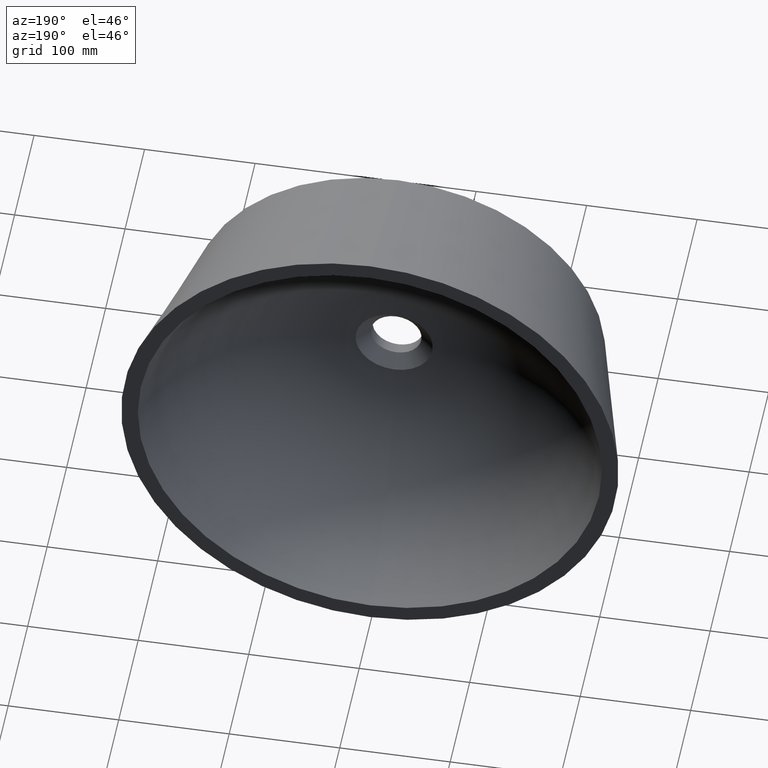
[diagram: clean part render]
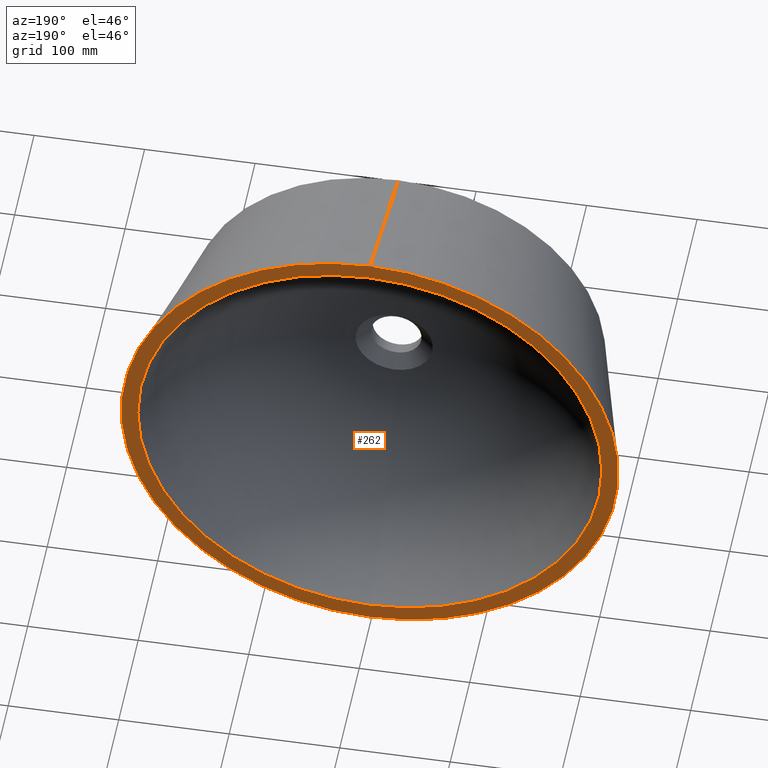
[diagram: same view with one face highlighted and labeled with its STEP entity id]
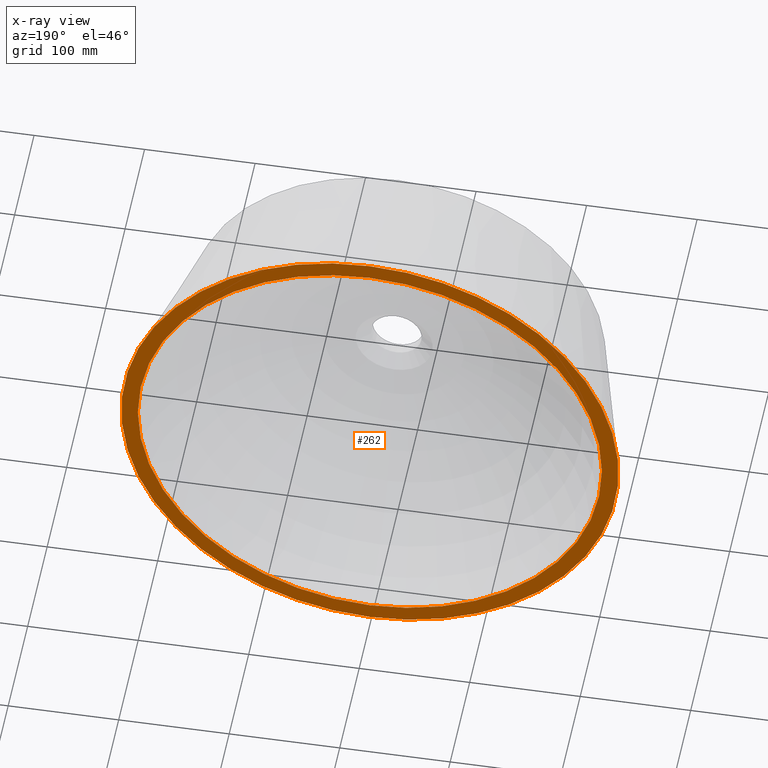
[diagram: x-ray of the same camera — body ghosted, the highlighted face saturated]
A machine part, auxiliary view. The second image highlights one B-rep face of the part: STEP entity #262.
The next image is the same camera in x-ray: the body ghosted, the highlighted face saturated — about 0% of this face is hidden behind the body in this view.
In plain terms, the highlighted planar face has unit normal (0, -1, -0).
Its self-contained STEP definition (entity closure, byte-faithful):
#3 = CARTESIAN_POINT ( 'NONE',  ( 0.0000000000000000000, 144.9999999999999700, -210.0000000000000300 ) ) ;
#5 = DIRECTION ( 'NONE',  ( 0.0000000000000000000, 0.0000000000000000000, -1.000000000000000000 ) ) ;
#6 = ORIENTED_EDGE ( 'NONE', *, *, #195, .T. ) ;
#9 = CIRCLE ( 'NONE', #97, 210.0000000000000300 ) ;
#13 = DIRECTION ( 'NONE',  ( -0.0000000000000000000, -1.000000000000000000, -0.0000000000000000000 ) ) ;
#17 = VERTEX_POINT ( 'NONE', #246 ) ;
#22 = DIRECTION ( 'NONE',  ( 0.0000000000000000000, 0.0000000000000000000, -1.000000000000000000 ) ) ;
#63 = CIRCLE ( 'NONE', #185, 225.0000000000000300 ) ;
#75 = VERTEX_POINT ( 'NONE', #197 ) ;
#78 = EDGE_CURVE ( 'NONE', #17, #239, #63, .T. ) ;
#88 = CARTESIAN_POINT ( 'NONE',  ( 0.0000000000000000000, 144.9999999999999400, 225.0000000000000300 ) ) ;
#92 = CARTESIAN_POINT ( 'NONE',  ( -225.0000000000000300, 144.9999999999999700, 0.0000000000000000000 ) ) ;
#97 = AXIS2_PLACEMENT_3D ( 'NONE', #290, #13, #331 ) ;
#114 = CARTESIAN_POINT ( 'NONE',  ( 0.0000000000000000000, 144.9999999999999400, 0.0000000000000000000 ) ) ;
#120 = FACE_BOUND ( 'NONE', #280, .T. ) ;
#127 = ORIENTED_EDGE ( 'NONE', *, *, #134, .F. ) ;
#129 = FACE_OUTER_BOUND ( 'NONE', #218, .T. ) ;
#132 = CIRCLE ( 'NONE', #190, 210.0000000000000300 ) ;
#134 = EDGE_CURVE ( 'NONE', #239, #17, #181, .T. ) ;
#139 = DIRECTION ( 'NONE',  ( 0.0000000000000000000, 0.0000000000000000000, -1.000000000000000000 ) ) ;
#160 = DIRECTION ( 'NONE',  ( -0.0000000000000000000, -1.000000000000000000, -0.0000000000000000000 ) ) ;
#181 = CIRCLE ( 'NONE', #263, 225.0000000000000300 ) ;
#185 = AXIS2_PLACEMENT_3D ( 'NONE', #114, #261, #139 ) ;
#190 = AXIS2_PLACEMENT_3D ( 'NONE', #211, #160, #22 ) ;
#195 = EDGE_CURVE ( 'NONE', #75, #198, #132, .T. ) ;
#197 = CARTESIAN_POINT ( 'NONE',  ( 2.571758278209442200E-014, 144.9999999999999700, 210.0000000000000300 ) ) ;
#198 = VERTEX_POINT ( 'NONE', #3 ) ;
#211 = CARTESIAN_POINT ( 'NONE',  ( 0.0000000000000000000, 144.9999999999999700, 0.0000000000000000000 ) ) ;
#218 = EDGE_LOOP ( 'NONE', ( #127, #282 ) ) ;
#239 = VERTEX_POINT ( 'NONE', #88 ) ;
#243 = DIRECTION ( 'NONE',  ( -0.0000000000000000000, -1.000000000000000000, -0.0000000000000000000 ) ) ;
#246 = CARTESIAN_POINT ( 'NONE',  ( 2.755455298081544900E-014, 144.9999999999999400, -225.0000000000000300 ) ) ;
#247 = DIRECTION ( 'NONE',  ( 0.0000000000000000000, -1.000000000000000000, -0.0000000000000000000 ) ) ;
#260 = DIRECTION ( 'NONE',  ( 0.0000000000000000000, 0.0000000000000000000, -1.000000000000000000 ) ) ;
#261 = DIRECTION ( 'NONE',  ( -0.0000000000000000000, -1.000000000000000000, -0.0000000000000000000 ) ) ;
#262 = ADVANCED_FACE ( 'NONE', ( #129, #120 ), #329, .F. ) ;
#263 = AXIS2_PLACEMENT_3D ( 'NONE', #288, #243, #260 ) ;
#268 = AXIS2_PLACEMENT_3D ( 'NONE', #92, #247, #5 ) ;
#280 = EDGE_LOOP ( 'NONE', ( #286, #6 ) ) ;
#282 = ORIENTED_EDGE ( 'NONE', *, *, #78, .F. ) ;
#286 = ORIENTED_EDGE ( 'NONE', *, *, #313, .T. ) ;
#288 = CARTESIAN_POINT ( 'NONE',  ( 0.0000000000000000000, 144.9999999999999400, 0.0000000000000000000 ) ) ;
#290 = CARTESIAN_POINT ( 'NONE',  ( 0.0000000000000000000, 144.9999999999999700, 0.0000000000000000000 ) ) ;
#313 = EDGE_CURVE ( 'NONE', #198, #75, #9, .T. ) ;
#329 = PLANE ( 'NONE',  #268 ) ;
#331 = DIRECTION ( 'NONE',  ( 0.0000000000000000000, 0.0000000000000000000, -1.000000000000000000 ) ) ;